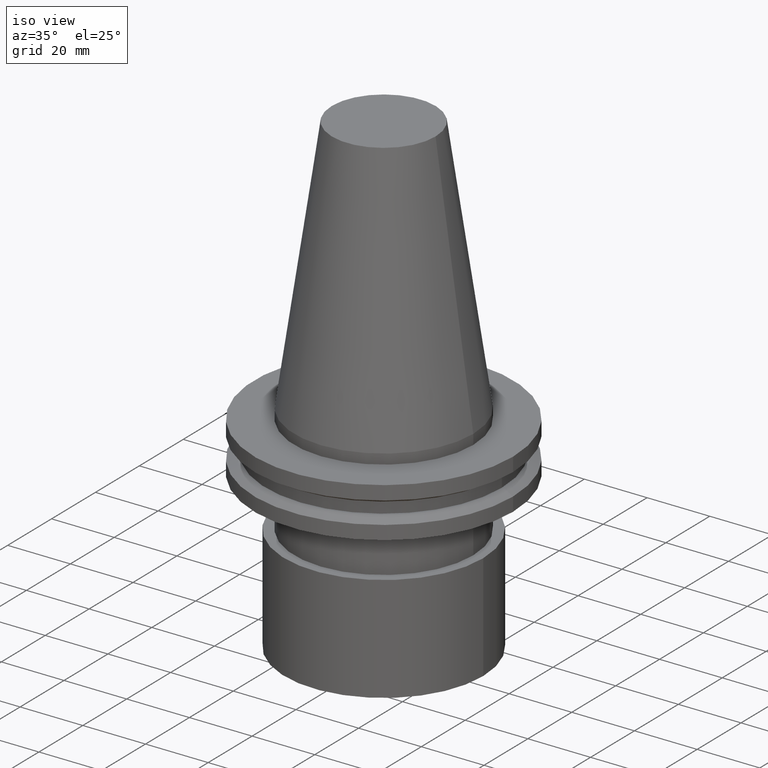
[diagram: clean part render]
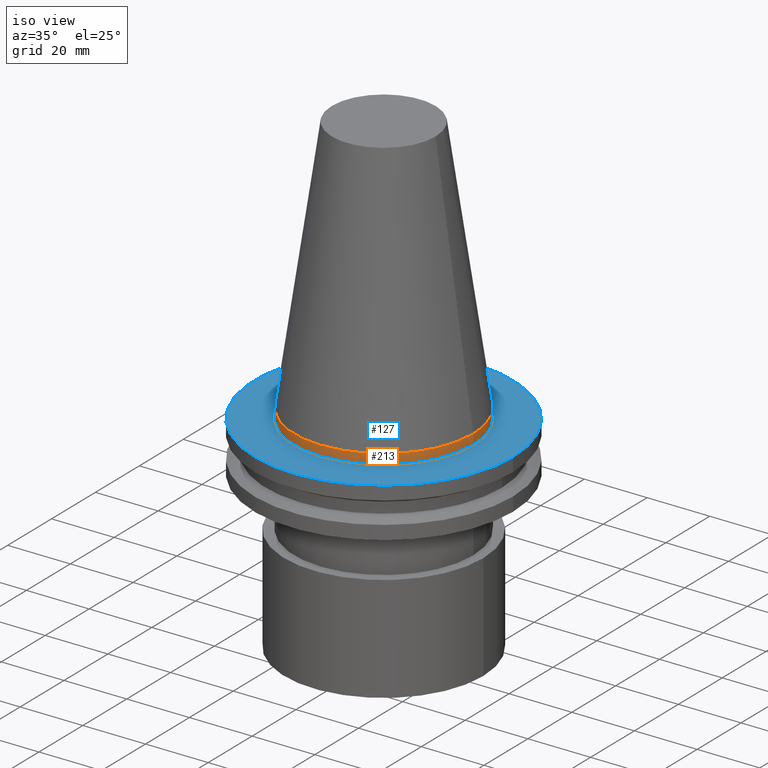
[diagram: same view with the hole feature highlighted: cylindrical wall and planar end face, labeled with their STEP entity ids]
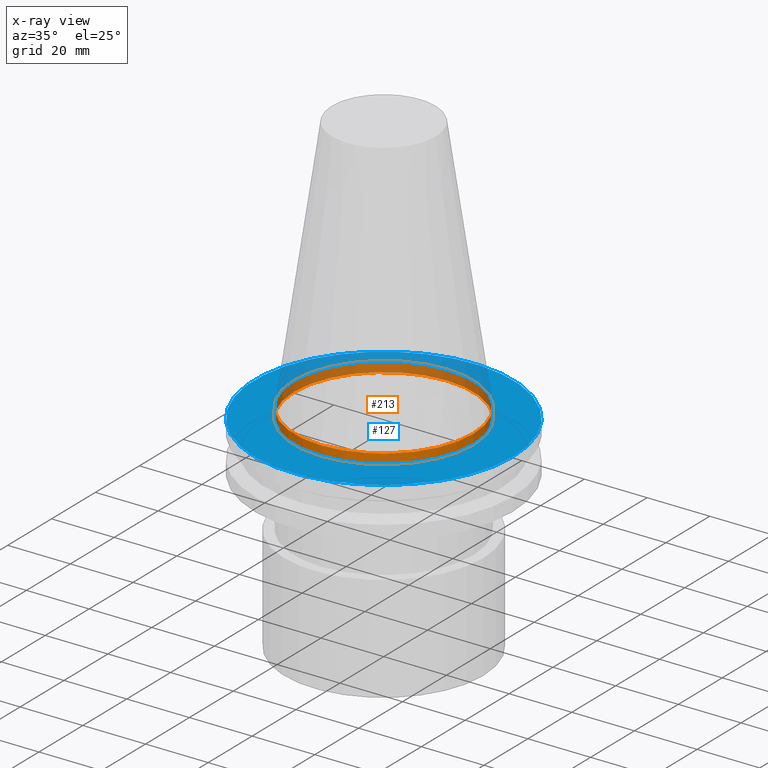
[diagram: x-ray of the same camera — body ghosted, the hole faces saturated]
A machine part, iso view. The highlighted faces form one hole feature of diameter 57.15 mm: the cylindrical wall (entity #213, orange) and its adjacent planar end face (entity #127, blue) — they share a circular edge in the B-rep.
The next image is the same camera in x-ray (body ghosted, the hole faces saturated) — the bore reads through the body.
Wall:
#4 = CYLINDRICAL_SURFACE ( 'NONE', #65, 28.57499999999999218 ) ;
#11 = EDGE_CURVE ( 'NONE', #383, #383, #277, .T. ) ;
#16 = DIRECTION ( 'NONE',  ( -0.000000000000000000, -0.000000000000000000, 1.000000000000000000 ) ) ;
#49 = ORIENTED_EDGE ( 'NONE', *, *, #191, .F. ) ;
#54 = VERTEX_POINT ( 'NONE', #232 ) ;
#65 = AXIS2_PLACEMENT_3D ( 'NONE', #220, #68, #130 ) ;
#68 = DIRECTION ( 'NONE',  ( -0.000000000000000000, -0.000000000000000000, 1.000000000000000000 ) ) ;
#99 = DIRECTION ( 'NONE',  ( -0.000000000000000000, -0.000000000000000000, 1.000000000000000000 ) ) ;
#130 = DIRECTION ( 'NONE',  ( 1.000000000000000000, 0.000000000000000000, 0.000000000000000000 ) ) ;
#139 = DIRECTION ( 'NONE',  ( 1.000000000000000000, 0.000000000000000000, 0.000000000000000000 ) ) ;
#142 = AXIS2_PLACEMENT_3D ( 'NONE', #252, #16, #139 ) ;
#166 = AXIS2_PLACEMENT_3D ( 'NONE', #371, #99, #217 ) ;
#167 = EDGE_LOOP ( 'NONE', ( #193 ) ) ;
#191 = EDGE_CURVE ( 'NONE', #54, #54, #342, .T. ) ;
#193 = ORIENTED_EDGE ( 'NONE', *, *, #11, .T. ) ;
#213 = ADVANCED_FACE ( 'NONE', ( #373, #395 ), #4, .T. ) ;
#217 = DIRECTION ( 'NONE',  ( 1.000000000000000000, 0.000000000000000000, 0.000000000000000000 ) ) ;
#220 = CARTESIAN_POINT ( 'NONE',  ( 0.000000000000000000, 0.000000000000000000, 82.54999999999999716 ) ) ;
#232 = CARTESIAN_POINT ( 'NONE',  ( 28.57499999999999218, 0.000000000000000000, 0.000000000000000000 ) ) ;
#252 = CARTESIAN_POINT ( 'NONE',  ( 0.000000000000000000, 0.000000000000000000, -3.174999999999997158 ) ) ;
#277 = CIRCLE ( 'NONE', #142, 28.57499999999999218 ) ;
#298 = CARTESIAN_POINT ( 'NONE',  ( 28.57499999999999218, 0.000000000000000000, -3.174999999999997158 ) ) ;
#342 = CIRCLE ( 'NONE', #166, 28.57499999999999218 ) ;
#349 = EDGE_LOOP ( 'NONE', ( #49 ) ) ;
#371 = CARTESIAN_POINT ( 'NONE',  ( 0.000000000000000000, 0.000000000000000000, 0.000000000000000000 ) ) ;
#373 = FACE_OUTER_BOUND ( 'NONE', #349, .T. ) ;
#383 = VERTEX_POINT ( 'NONE', #298 ) ;
#395 = FACE_OUTER_BOUND ( 'NONE', #167, .T. ) ;
End face:
#11 = EDGE_CURVE ( 'NONE', #383, #383, #277, .T. ) ;
#14 = EDGE_LOOP ( 'NONE', ( #196 ) ) ;
#16 = DIRECTION ( 'NONE',  ( -0.000000000000000000, -0.000000000000000000, 1.000000000000000000 ) ) ;
#27 = VERTEX_POINT ( 'NONE', #148 ) ;
#57 = CIRCLE ( 'NONE', #276, 41.27499999999999147 ) ;
#83 = AXIS2_PLACEMENT_3D ( 'NONE', #356, #329, #132 ) ;
#86 = DIRECTION ( 'NONE',  ( 1.000000000000000000, 0.000000000000000000, 0.000000000000000000 ) ) ;
#113 = DIRECTION ( 'NONE',  ( -0.000000000000000000, -0.000000000000000000, 1.000000000000000000 ) ) ;
#118 = PLANE ( 'NONE',  #83 ) ;
#127 = ADVANCED_FACE ( 'NONE', ( #391, #387 ), #118, .F. ) ;
#132 = DIRECTION ( 'NONE',  ( -1.000000000000000000, 0.000000000000000000, -0.000000000000000000 ) ) ;
#139 = DIRECTION ( 'NONE',  ( 1.000000000000000000, 0.000000000000000000, 0.000000000000000000 ) ) ;
#142 = AXIS2_PLACEMENT_3D ( 'NONE', #252, #16, #139 ) ;
#148 = CARTESIAN_POINT ( 'NONE',  ( 41.27499999999999147, 0.000000000000000000, -3.174999999999997158 ) ) ;
#190 = EDGE_LOOP ( 'NONE', ( #382 ) ) ;
#196 = ORIENTED_EDGE ( 'NONE', *, *, #308, .T. ) ;
#252 = CARTESIAN_POINT ( 'NONE',  ( 0.000000000000000000, 0.000000000000000000, -3.174999999999997158 ) ) ;
#276 = AXIS2_PLACEMENT_3D ( 'NONE', #347, #113, #86 ) ;
#277 = CIRCLE ( 'NONE', #142, 28.57499999999999218 ) ;
#298 = CARTESIAN_POINT ( 'NONE',  ( 28.57499999999999218, 0.000000000000000000, -3.174999999999997158 ) ) ;
#308 = EDGE_CURVE ( 'NONE', #27, #27, #57, .T. ) ;
#329 = DIRECTION ( 'NONE',  ( 0.000000000000000000, 0.000000000000000000, -1.000000000000000000 ) ) ;
#347 = CARTESIAN_POINT ( 'NONE',  ( 0.000000000000000000, 0.000000000000000000, -3.174999999999997158 ) ) ;
#356 = CARTESIAN_POINT ( 'NONE',  ( 0.000000000000000000, 41.27499999999999147, -3.174999999999994493 ) ) ;
#382 = ORIENTED_EDGE ( 'NONE', *, *, #11, .F. ) ;
#383 = VERTEX_POINT ( 'NONE', #298 ) ;
#387 = FACE_OUTER_BOUND ( 'NONE', #14, .T. ) ;
#391 = FACE_BOUND ( 'NONE', #190, .T. ) ;